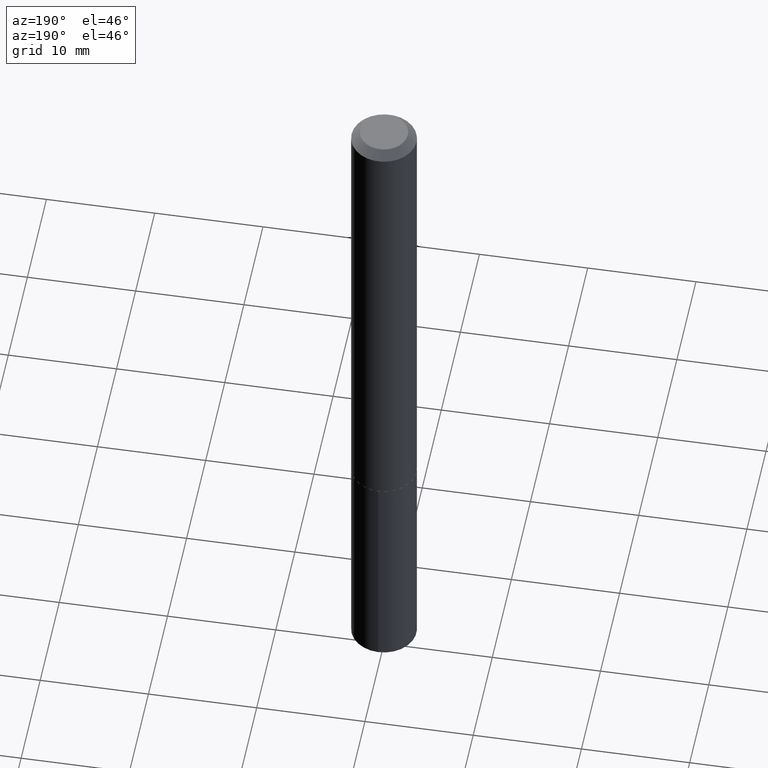
[diagram: clean part render]
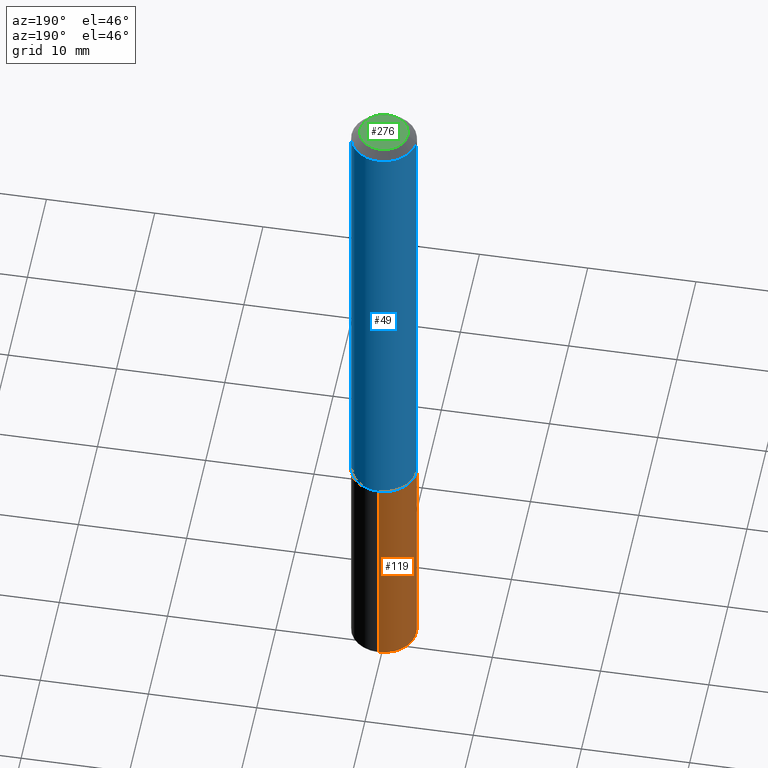
[diagram: same view with three faces highlighted in distinct colors, each labeled with its STEP entity id]
A machine part, auxiliary view with three faces highlighted in distinct colors.
Their STEP definitions:

[orange] entity #119 — the highlighted cylindrical surface (edge-blend (fillet) strip) has radius 2.9997 mm, axis along (-0, 0, 1).
#9 = DIRECTION ( 'NONE',  ( -6.982962677686265922E-15, -1.000000000000000000, 4.626330217890369336E-15 ) ) ;
#10 = CARTESIAN_POINT ( 'NONE',  ( -8.246878922347056641E-16, -0.1181000000000060474, -1.732199999999999074 ) ) ;
#11 = DIRECTION ( 'NONE',  ( -2.446120480058821266E-29, 3.490548104765055762E-15, 1.000000000000000000 ) ) ;
#18 = LINE ( 'NONE', #112, #36 ) ;
#19 = VERTEX_POINT ( 'NONE', #307 ) ;
#32 = EDGE_CURVE ( 'NONE', #324, #19, #300, .T. ) ;
#36 = VECTOR ( 'NONE', #136, 39.37007874015748143 ) ;
#44 = CIRCLE ( 'NONE', #266, 0.1180999999999999966 ) ;
#74 = DIRECTION ( 'NONE',  ( -6.982962677686265922E-15, -1.000000000000000000, 4.626330217890369336E-15 ) ) ;
#96 = CYLINDRICAL_SURFACE ( 'NONE', #211, 0.1180999999999999966 ) ;
#108 = CARTESIAN_POINT ( 'NONE',  ( 8.391509709327409115E-16, 0.1180999999999910316, -2.561163213033393227 ) ) ;
#112 = CARTESIAN_POINT ( 'NONE',  ( -8.246878922347056641E-16, -0.1181000000000060474, -1.732199999999999074 ) ) ;
#119 = ADVANCED_FACE ( 'NONE', ( #129 ), #96, .T. ) ;
#128 = AXIS2_PLACEMENT_3D ( 'NONE', #261, #232, #344 ) ;
#129 = FACE_OUTER_BOUND ( 'NONE', #295, .T. ) ;
#136 = DIRECTION ( 'NONE',  ( -2.446120480058821547E-29, 3.490548104765055762E-15, 1.000000000000000000 ) ) ;
#140 = CARTESIAN_POINT ( 'NONE',  ( -8.246878922346854496E-16, -0.1181000000000089617, -2.561163213033392339 ) ) ;
#141 = ORIENTED_EDGE ( 'NONE', *, *, #242, .T. ) ;
#144 = ORIENTED_EDGE ( 'NONE', *, *, #255, .F. ) ;
#152 = CARTESIAN_POINT ( 'NONE',  ( 8.391509709327204997E-16, 0.1180999999999939598, -1.732200000000000184 ) ) ;
#153 = ORIENTED_EDGE ( 'NONE', *, *, #214, .T. ) ;
#155 = DIRECTION ( 'NONE',  ( -2.446120480058821547E-29, 3.490548104765055762E-15, 1.000000000000000000 ) ) ;
#159 = CARTESIAN_POINT ( 'NONE',  ( 4.236041066073892487E-29, -6.047943975144095988E-15, -1.732199999999999518 ) ) ;
#198 = VERTEX_POINT ( 'NONE', #10 ) ;
#211 = AXIS2_PLACEMENT_3D ( 'NONE', #159, #11, #9 ) ;
#214 = EDGE_CURVE ( 'NONE', #324, #360, #44, .T. ) ;
#220 = CARTESIAN_POINT ( 'NONE',  ( 6.263784958690239673E-29, -8.941479947317758839E-15, -2.561163213033392783 ) ) ;
#232 = DIRECTION ( 'NONE',  ( -2.446120480058821266E-29, 3.490548104765055762E-15, 1.000000000000000000 ) ) ;
#242 = EDGE_CURVE ( 'NONE', #360, #198, #18, .T. ) ;
#255 = EDGE_CURVE ( 'NONE', #19, #198, #325, .T. ) ;
#261 = CARTESIAN_POINT ( 'NONE',  ( 4.236041066073892487E-29, -6.047943975144095988E-15, -1.732199999999999518 ) ) ;
#265 = VECTOR ( 'NONE', #155, 39.37007874015748143 ) ;
#266 = AXIS2_PLACEMENT_3D ( 'NONE', #220, #341, #74 ) ;
#272 = ORIENTED_EDGE ( 'NONE', *, *, #32, .F. ) ;
#295 = EDGE_LOOP ( 'NONE', ( #272, #153, #141, #144 ) ) ;
#300 = LINE ( 'NONE', #152, #265 ) ;
#307 = CARTESIAN_POINT ( 'NONE',  ( 8.391509709327409115E-16, 0.1180999999999939321, -1.732200000000000184 ) ) ;
#324 = VERTEX_POINT ( 'NONE', #108 ) ;
#325 = CIRCLE ( 'NONE', #128, 0.1180999999999999966 ) ;
#341 = DIRECTION ( 'NONE',  ( -2.446120480058821266E-29, 3.490548104765055762E-15, 1.000000000000000000 ) ) ;
#344 = DIRECTION ( 'NONE',  ( -6.982962677686265922E-15, -1.000000000000000000, 4.626330217890369336E-15 ) ) ;
#360 = VERTEX_POINT ( 'NONE', #140 ) ;

[blue] entity #49 — the highlighted cylindrical surface (edge-blend (fillet) strip) has radius 2.9997 mm, axis along (-0, 0, 1).
#23 = VECTOR ( 'NONE', #131, 39.37007874015748143 ) ;
#42 = EDGE_CURVE ( 'NONE', #177, #82, #207, .T. ) ;
#45 = DIRECTION ( 'NONE',  ( 1.000000000000000000, -6.982962677686266711E-15, 0.000000000000000000 ) ) ;
#49 = ADVANCED_FACE ( 'NONE', ( #313 ), #69, .T. ) ;
#54 = ORIENTED_EDGE ( 'NONE', *, *, #224, .T. ) ;
#58 = AXIS2_PLACEMENT_3D ( 'NONE', #294, #296, #378 ) ;
#67 = CARTESIAN_POINT ( 'NONE',  ( 0.000000000000000000, 0.000000000000000000, 0.000000000000000000 ) ) ;
#69 = CYLINDRICAL_SURFACE ( 'NONE', #107, 0.1181000000000001077 ) ;
#71 = EDGE_CURVE ( 'NONE', #82, #208, #315, .T. ) ;
#82 = VERTEX_POINT ( 'NONE', #338 ) ;
#95 = CARTESIAN_POINT ( 'NONE',  ( 0.1181000000000002187, -6.870886126709424325E-15, -1.731699999999999795 ) ) ;
#98 = DIRECTION ( 'NONE',  ( -2.445468806185136877E-29, 3.491481338843145188E-15, 1.000000000000000000 ) ) ;
#100 = CARTESIAN_POINT ( 'NONE',  ( -0.1180999999999999966, -2.238502542224082018E-15, -0.03125000000000021511 ) ) ;
#107 = AXIS2_PLACEMENT_3D ( 'NONE', #67, #162, #249 ) ;
#125 = CARTESIAN_POINT ( 'NONE',  ( -0.1181000000000001077, 8.391509709326790846E-16, -5.809262341591049389E-30 ) ) ;
#130 = CARTESIAN_POINT ( 'NONE',  ( 7.642090019328603538E-31, -1.091087918388490390E-16, -0.03125000000000021511 ) ) ;
#131 = DIRECTION ( 'NONE',  ( -2.445468806185136877E-29, 3.491481338843145188E-15, 1.000000000000000000 ) ) ;
#137 = ORIENTED_EDGE ( 'NONE', *, *, #42, .F. ) ;
#148 = EDGE_CURVE ( 'NONE', #235, #208, #282, .T. ) ;
#149 = ORIENTED_EDGE ( 'NONE', *, *, #148, .T. ) ;
#162 = DIRECTION ( 'NONE',  ( -2.445468806185136597E-29, 3.491481338843145583E-15, 1.000000000000000000 ) ) ;
#177 = VERTEX_POINT ( 'NONE', #95 ) ;
#181 = DIRECTION ( 'NONE',  ( -2.445468806185136597E-29, 3.491481338843145583E-15, 1.000000000000000000 ) ) ;
#196 = CIRCLE ( 'NONE', #58, 0.1181000000000002187 ) ;
#204 = EDGE_LOOP ( 'NONE', ( #54, #149, #244, #137 ) ) ;
#207 = LINE ( 'NONE', #330, #373 ) ;
#208 = VERTEX_POINT ( 'NONE', #100 ) ;
#224 = EDGE_CURVE ( 'NONE', #177, #235, #196, .T. ) ;
#235 = VERTEX_POINT ( 'NONE', #343 ) ;
#236 = AXIS2_PLACEMENT_3D ( 'NONE', #130, #181, #45 ) ;
#244 = ORIENTED_EDGE ( 'NONE', *, *, #71, .F. ) ;
#249 = DIRECTION ( 'NONE',  ( 1.000000000000000000, -6.982962677686266711E-15, 4.876176775795935793E-29 ) ) ;
#282 = LINE ( 'NONE', #125, #23 ) ;
#294 = CARTESIAN_POINT ( 'NONE',  ( 4.234818331670800246E-29, -6.046198234474674485E-15, -1.731699999999999795 ) ) ;
#296 = DIRECTION ( 'NONE',  ( -2.445468806185136597E-29, 3.491481338843145583E-15, 1.000000000000000000 ) ) ;
#313 = FACE_OUTER_BOUND ( 'NONE', #204, .T. ) ;
#315 = CIRCLE ( 'NONE', #236, 0.1180999999999999966 ) ;
#330 = CARTESIAN_POINT ( 'NONE',  ( 0.1181000000000001077, -8.246878922347488542E-16, 5.758764772215005345E-30 ) ) ;
#338 = CARTESIAN_POINT ( 'NONE',  ( 0.1180999999999999966, -9.337966840735971660E-16, -0.03125000000000021511 ) ) ;
#343 = CARTESIAN_POINT ( 'NONE',  ( -0.1181000000000002187, -5.207047263541994710E-15, -1.731699999999999795 ) ) ;
#373 = VECTOR ( 'NONE', #98, 39.37007874015748143 ) ;
#378 = DIRECTION ( 'NONE',  ( 1.000000000000000000, -6.982962677686267499E-15, 0.000000000000000000 ) ) ;

[green] entity #276 — the highlighted planar face has unit normal (0, -0, -1).
#17 = EDGE_CURVE ( 'NONE', #121, #50, #291, .T. ) ;
#50 = VERTEX_POINT ( 'NONE', #335 ) ;
#57 = ORIENTED_EDGE ( 'NONE', *, *, #76, .T. ) ;
#76 = EDGE_CURVE ( 'NONE', #50, #121, #195, .T. ) ;
#77 = DIRECTION ( 'NONE',  ( -1.000000000000000000, 6.982962677686265922E-15, -4.876176775795935793E-29 ) ) ;
#84 = FACE_OUTER_BOUND ( 'NONE', #297, .T. ) ;
#121 = VERTEX_POINT ( 'NONE', #284 ) ;
#157 = CARTESIAN_POINT ( 'NONE',  ( -1.665128563525584940E-46, 2.377362283918716598E-32, 6.809036203259281235E-18 ) ) ;
#182 = AXIS2_PLACEMENT_3D ( 'NONE', #225, #222, #77 ) ;
#185 = DIRECTION ( 'NONE',  ( -2.445468806185136597E-29, 3.491481338843145583E-15, 1.000000000000000000 ) ) ;
#191 = DIRECTION ( 'NONE',  ( 1.000000000000000000, -6.982962677686266711E-15, 4.875959881687004012E-29 ) ) ;
#195 = CIRCLE ( 'NONE', #273, 0.08684999999999999665 ) ;
#209 = AXIS2_PLACEMENT_3D ( 'NONE', #333, #361, #362 ) ;
#222 = DIRECTION ( 'NONE',  ( 2.438088387897960049E-29, -3.491481338843145188E-15, -1.000000000000000000 ) ) ;
#225 = CARTESIAN_POINT ( 'NONE',  ( -8.325642817627924699E-47, 1.188681141959358299E-32, 3.404518101629640617E-18 ) ) ;
#254 = PLANE ( 'NONE',  #182 ) ;
#273 = AXIS2_PLACEMENT_3D ( 'NONE', #157, #185, #191 ) ;
#276 = ADVANCED_FACE ( 'NONE', ( #84 ), #254, .F. ) ;
#284 = CARTESIAN_POINT ( 'NONE',  ( 0.08684999999999999665, -7.575839282410621061E-16, 6.809036203264050608E-18 ) ) ;
#291 = CIRCLE ( 'NONE', #209, 0.08684999999999999665 ) ;
#297 = EDGE_LOOP ( 'NONE', ( #57, #386 ) ) ;
#333 = CARTESIAN_POINT ( 'NONE',  ( -1.665128563525584940E-46, 2.377362283918716598E-32, 6.809036203259281235E-18 ) ) ;
#335 = CARTESIAN_POINT ( 'NONE',  ( -0.08684999999999999665, 6.610247044764755977E-16, 6.809036203254849285E-18 ) ) ;
#361 = DIRECTION ( 'NONE',  ( -2.445468806185136597E-29, 3.491481338843145583E-15, 1.000000000000000000 ) ) ;
#362 = DIRECTION ( 'NONE',  ( 1.000000000000000000, -6.982962677686266711E-15, 4.875959881687004012E-29 ) ) ;
#386 = ORIENTED_EDGE ( 'NONE', *, *, #17, .T. ) ;